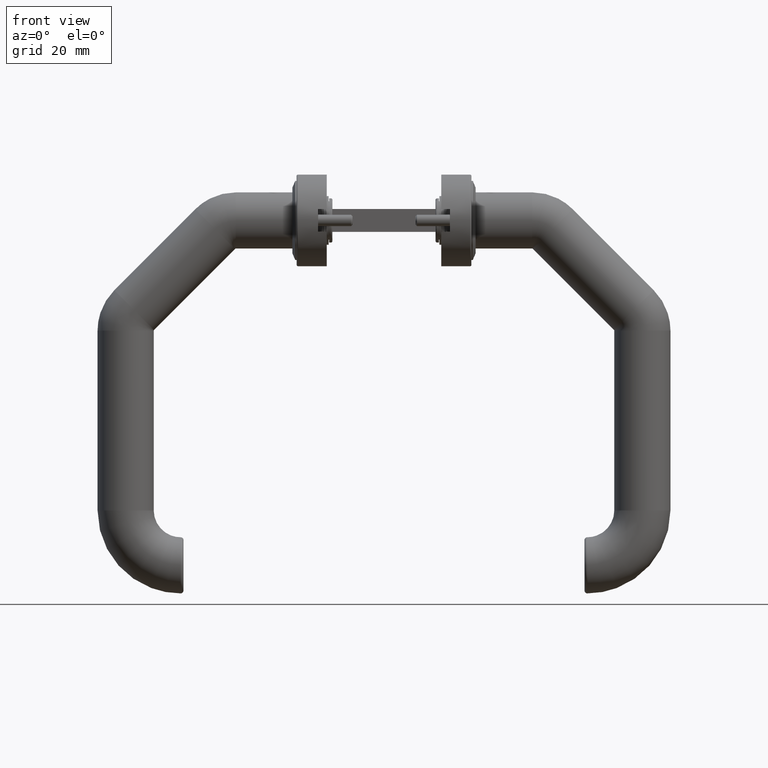
[diagram: clean part render]
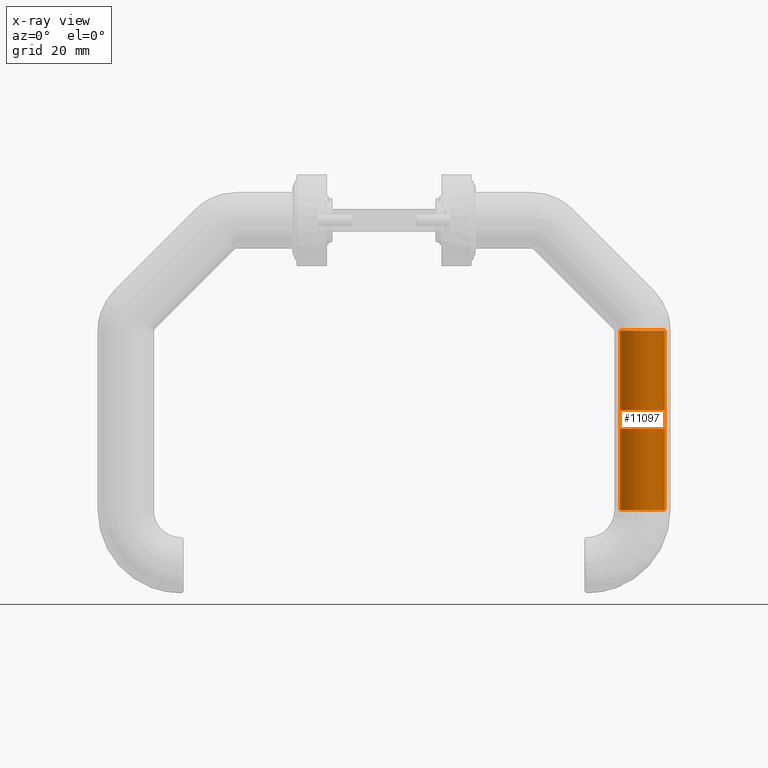
[diagram: x-ray — body ghosted, one internal face saturated and labeled with its STEP entity id]
A machine part, front view, then the same camera in x-ray: the body is ghosted and one INTERNAL B-rep face — a face not visible from any outside direction — is saturated and labeled: STEP entity #11097.
In plain terms, the highlighted cylindrical surface (bore or boss wall) has radius 7.85 mm, axis along (0, 0, -1).
Its self-contained STEP definition (entity closure, byte-faithful):
#297 = CYLINDRICAL_SURFACE ( 'NONE', #2251, 7.850000000000003197 ) ;
#574 = FACE_OUTER_BOUND ( 'NONE', #1358, .T. ) ;
#1142 = DIRECTION ( 'NONE',  ( -1.000000000000000000, 0.000000000000000000, 5.532020469128654318E-17 ) ) ;
#1358 = EDGE_LOOP ( 'NONE', ( #7042 ) ) ;
#2251 = AXIS2_PLACEMENT_3D ( 'NONE', #4345, #1142, #19043 ) ;
#4345 = CARTESIAN_POINT ( 'NONE',  ( -48.28427124746188781, 0.000000000000000000, -9.799999999999995381 ) ) ;
#4471 = ORIENTED_EDGE ( 'NONE', *, *, #16826, .T. ) ;
#5365 = DIRECTION ( 'NONE',  ( -1.000000000000000000, 0.000000000000000000, 5.532020469128654318E-17 ) ) ;
#5777 = DIRECTION ( 'NONE',  ( 0.000000000000000000, 0.000000000000000000, -1.000000000000000000 ) ) ;
#6328 = EDGE_CURVE ( 'NONE', #15099, #15099, #20510, .T. ) ;
#7042 = ORIENTED_EDGE ( 'NONE', *, *, #6328, .F. ) ;
#7367 = DIRECTION ( 'NONE',  ( -1.000000000000000000, 0.000000000000000000, 1.224646799147353207E-16 ) ) ;
#8931 = CARTESIAN_POINT ( 'NONE',  ( -111.0000000000000142, 0.000000000000000000, -9.799999999999993605 ) ) ;
#11097 = ADVANCED_FACE ( 'NONE', ( #574, #14360 ), #297, .F. ) ;
#13668 = DIRECTION ( 'NONE',  ( 0.000000000000000000, 0.000000000000000000, 1.000000000000000000 ) ) ;
#14214 = CARTESIAN_POINT ( 'NONE',  ( -111.0000000000000142, 0.000000000000000000, -17.64999999999999503 ) ) ;
#14360 = FACE_OUTER_BOUND ( 'NONE', #14492, .T. ) ;
#14492 = EDGE_LOOP ( 'NONE', ( #4471 ) ) ;
#15099 = VERTEX_POINT ( 'NONE', #18969 ) ;
#15164 = CARTESIAN_POINT ( 'NONE',  ( -48.28427124746188781, 0.000000000000000000, -9.799999999999995381 ) ) ;
#16826 = EDGE_CURVE ( 'NONE', #19225, #19225, #18831, .T. ) ;
#18760 = AXIS2_PLACEMENT_3D ( 'NONE', #8931, #7367, #5777 ) ;
#18831 = CIRCLE ( 'NONE', #18760, 7.850000000000003197 ) ;
#18969 = CARTESIAN_POINT ( 'NONE',  ( -48.28427124746188781, 0.000000000000000000, -1.949999999999993516 ) ) ;
#19043 = DIRECTION ( 'NONE',  ( 0.000000000000000000, 0.000000000000000000, 1.000000000000000000 ) ) ;
#19225 = VERTEX_POINT ( 'NONE', #14214 ) ;
#20510 = CIRCLE ( 'NONE', #20972, 7.850000000000003197 ) ;
#20972 = AXIS2_PLACEMENT_3D ( 'NONE', #15164, #5365, #13668 ) ;